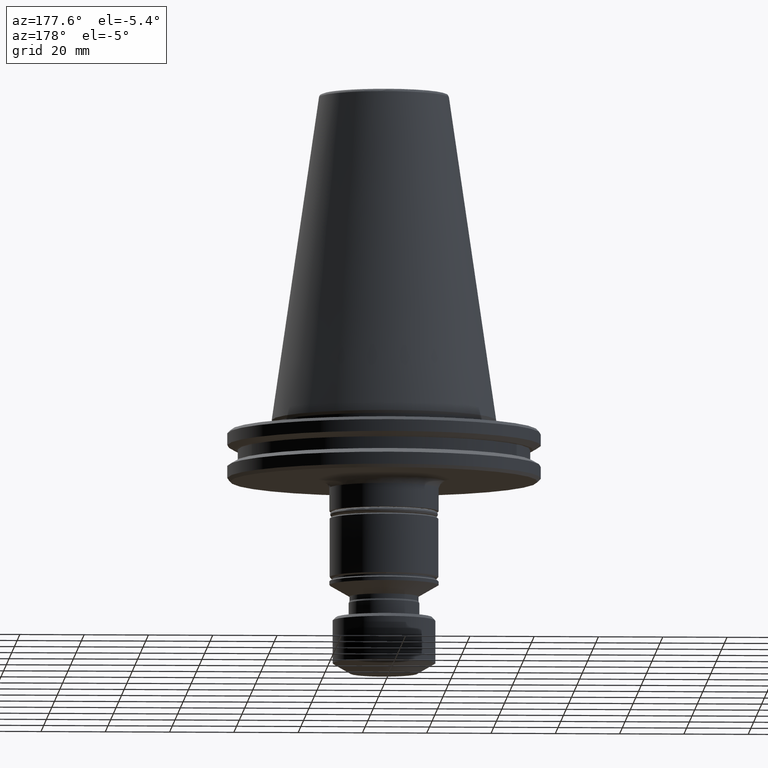
[diagram: clean part render]
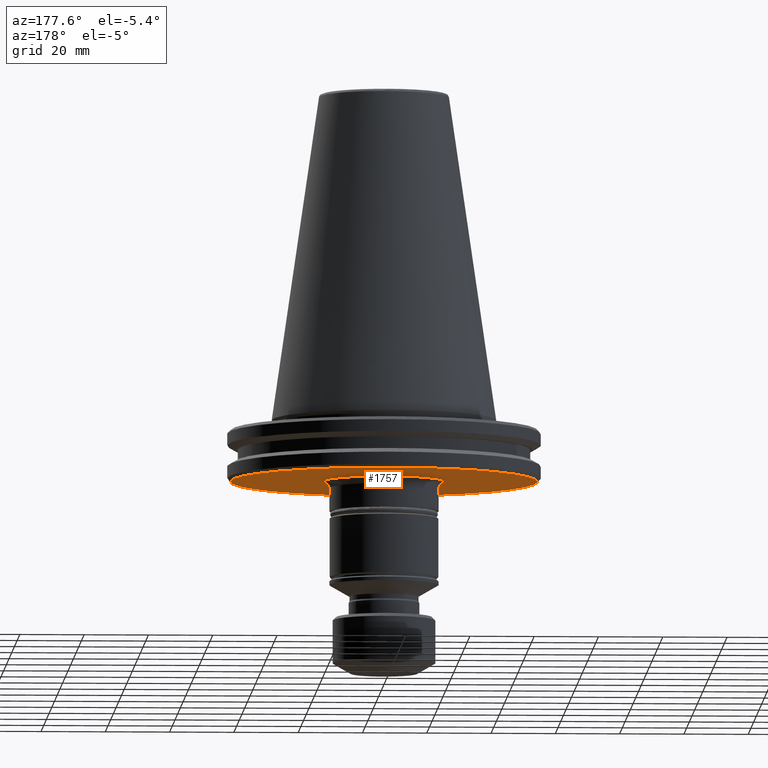
[diagram: same view with one face highlighted and labeled with its STEP entity id]
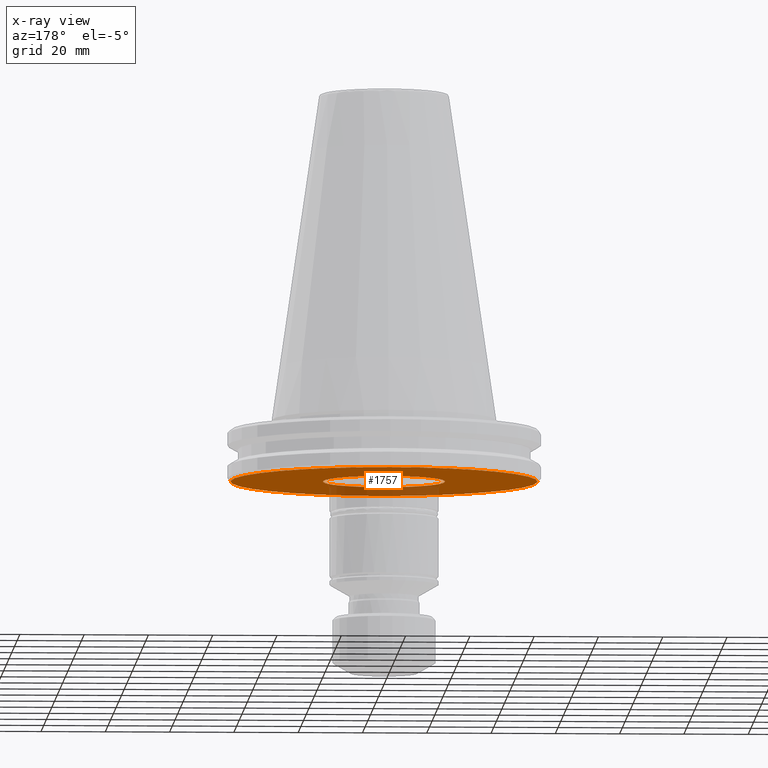
[diagram: x-ray of the same camera — body ghosted, the highlighted face saturated]
A machine part, auxiliary view. The second image highlights one B-rep face of the part: STEP entity #1757.
The next image is the same camera in x-ray: the body ghosted, the highlighted face saturated — about 17% of this face is hidden behind the body in this view.
In plain terms, the highlighted planar face has unit normal (0, 0, -1).
Its self-contained STEP definition (entity closure, byte-faithful):
#5 = EDGE_LOOP ( 'NONE', ( #982, #465 ) ) ;
#6 = CARTESIAN_POINT ( 'NONE',  ( 19.00000000000001100, 0.5809777820066233100, -19.10000000000000900 ) ) ;
#14 = CARTESIAN_POINT ( 'NONE',  ( 8.463652133828906800, -17.03213769401952100, -19.10000000000000100 ) ) ;
#22 = CARTESIAN_POINT ( 'NONE',  ( 7.590630580574469400, -17.42971649145036400, -19.10000000000000500 ) ) ;
#23 = CARTESIAN_POINT ( 'NONE',  ( 17.69422383630279700, 6.922130523949479500, -19.10000000000001200 ) ) ;
#32 = CARTESIAN_POINT ( 'NONE',  ( 6.956497537994401600, -17.68074404698216600, -19.10000000000000100 ) ) ;
#35 = CARTESIAN_POINT ( 'NONE',  ( 6.922130523950871300, -17.69422383630253400, -19.10000000000000100 ) ) ;
#38 = CARTESIAN_POINT ( 'NONE',  ( -6.490554878054840800, 17.85820765092393400, -19.10000000000000900 ) ) ;
#41 = CARTESIAN_POINT ( 'NONE',  ( 6.850365939723121600, -17.72213365351625200, -19.10000000000000500 ) ) ;
#45 = CARTESIAN_POINT ( 'NONE',  ( 6.742623436878468500, -17.76366208043419100, -19.10000000000000900 ) ) ;
#53 = CARTESIAN_POINT ( 'NONE',  ( 17.03213769402317400, 8.463652133830750700, -19.10000000000000900 ) ) ;
#54 = CARTESIAN_POINT ( 'NONE',  ( 6.490554878053026200, -17.85820765092427500, -19.10000000000001200 ) ) ;
#62 = CARTESIAN_POINT ( 'NONE',  ( 4.510639325466829800, 18.46143173788259200, -19.10000000000000100 ) ) ;
#73 = CARTESIAN_POINT ( 'NONE',  ( 7.142792904951263300, 17.60631135961862600, -19.10000000000000500 ) ) ;
#76 = CARTESIAN_POINT ( 'NONE',  ( 5.983740218317193700, -18.03788242263066300, -19.10000000000000900 ) ) ;
#82 = CARTESIAN_POINT ( 'NONE',  ( 4.959400730505682200, -18.35956648894828200, -19.10000000000000100 ) ) ;
#83 = CARTESIAN_POINT ( 'NONE',  ( 4.063035166656074900, -18.57072629934317800, -19.10000000000000900 ) ) ;
#86 = CARTESIAN_POINT ( 'NONE',  ( 3.419439422654166000, -18.68980673120064400, -19.10000000000000500 ) ) ;
#90 = CARTESIAN_POINT ( 'NONE',  ( 3.385846052829848900, -18.69591732378342300, -19.10000000000000500 ) ) ;
#98 = CARTESIAN_POINT ( 'NONE',  ( 8.025699228613046200, 17.22711661870838600, -19.10000000000000900 ) ) ;
#99 = CARTESIAN_POINT ( 'NONE',  ( 3.314366724182333400, -18.70872278897574500, -19.10000000000000900 ) ) ;
#105 = CARTESIAN_POINT ( 'NONE',  ( 3.207120345564443900, -18.72762112808801800, -19.10000000000000500 ) ) ;
#112 = CARTESIAN_POINT ( 'NONE',  ( 2.956687095929741100, -18.76954824194999100, -19.10000000000000100 ) ) ;
#115 = CARTESIAN_POINT ( 'NONE',  ( 2.455053798555118000, -18.84472642674050000, -19.10000000000000900 ) ) ;
#120 = CARTESIAN_POINT ( 'NONE',  ( 1.448720011385033600, -18.96037862458778600, -19.10000000000000500 ) ) ;
#130 = CARTESIAN_POINT ( 'NONE',  ( 0.5808901496606870800, -19.00001621405624900, -19.10000000000000500 ) ) ;
#131 = CARTESIAN_POINT ( 'NONE',  ( -1.161780299321372600, -18.99996757188751700, -19.10000000000000100 ) ) ;
#138 = CARTESIAN_POINT ( 'NONE',  ( -2.314919086400696500, -18.89423488548291600, -19.10000000000000900 ) ) ;
#144 = CARTESIAN_POINT ( 'NONE',  ( -3.492997336750440300, -18.67619472224091500, -19.10000000000000500 ) ) ;
#156 = CARTESIAN_POINT ( 'NONE',  ( -3.533024647273774300, -18.66866848758581600, -19.10000000000000900 ) ) ;
#163 = CARTESIAN_POINT ( 'NONE',  ( -3.608653701709434400, -18.65419924540756500, -19.09999999999999800 ) ) ;
#165 = CARTESIAN_POINT ( 'NONE',  ( -3.721999686355568700, -18.63215965229107200, -19.10000000000000900 ) ) ;
#167 = CARTESIAN_POINT ( 'NONE',  ( -3.985790471478344500, -18.57838382607525000, -19.10000000000000500 ) ) ;
#169 = CARTESIAN_POINT ( 'NONE',  ( -4.510639325517779200, -18.46143173786774800, -19.10000000000000500 ) ) ;
#170 = CARTESIAN_POINT ( 'NONE',  ( -5.549406168772169900, -18.18992581834922000, -19.10000000000000500 ) ) ;
#175 = CARTESIAN_POINT ( 'NONE',  ( 5.549406168704234900, 18.18992581836901200, -19.10000000000000500 ) ) ;
#176 = CARTESIAN_POINT ( 'NONE',  ( -6.421039123291122600, -17.89274632772729800, -19.10000000000000500 ) ) ;
#179 = CARTESIAN_POINT ( 'NONE',  ( -7.029597004074615200, -17.65180468221486300, -19.10000000000000100 ) ) ;
#180 = CARTESIAN_POINT ( 'NONE',  ( -2.455053798555202300, 18.84472642674050000, -19.10000000000000500 ) ) ;
#181 = CARTESIAN_POINT ( 'NONE',  ( -7.068383925188891600, -17.63631276670648200, -19.10000000000000100 ) ) ;
#189 = CARTESIAN_POINT ( 'NONE',  ( -7.142792904956171400, -17.60631135961566000, -19.10000000000000100 ) ) ;
#195 = CARTESIAN_POINT ( 'NONE',  ( 18.57838382608238700, -3.985790471456483400, -19.10000000000000500 ) ) ;
#201 = CARTESIAN_POINT ( 'NONE',  ( -7.254230910861063600, -17.56097279536832900, -19.10000000000000900 ) ) ;
#202 = CARTESIAN_POINT ( 'NONE',  ( -7.513024678416936600, -17.45282763684671300, -19.10000000000000100 ) ) ;
#206 = CARTESIAN_POINT ( 'NONE',  ( -8.025699228639895800, -17.22711661869220000, -19.10000000000000500 ) ) ;
#212 = CARTESIAN_POINT ( 'NONE',  ( 15.18537884479581700, 11.49457370129381000, -19.10000000000000900 ) ) ;
#213 = CARTESIAN_POINT ( 'NONE',  ( -9.031396389530639700, -16.73801177793802000, -19.10000000000000500 ) ) ;
#217 = CARTESIAN_POINT ( 'NONE',  ( -9.859733488199536200, -16.25417996395704600, -19.10000000000000100 ) ) ;
#220 = CARTESIAN_POINT ( 'NONE',  ( -10.46414179258248500, -15.85900655680404900, -19.10000000000000500 ) ) ;
#237 = FACE_BOUND ( 'NONE', #1543, .T. ) ;
#239 = CARTESIAN_POINT ( 'NONE',  ( 15.85900655680319300, -10.46414179258399100, -19.10000000000000500 ) ) ;
#244 = CARTESIAN_POINT ( 'NONE',  ( -10.53391970750573800, -15.81275742974422400, -19.10000000000000500 ) ) ;
#245 = CARTESIAN_POINT ( 'NONE',  ( -4.959400730509826400, 18.35956648894749000, -19.10000000000000500 ) ) ;
#252 = CARTESIAN_POINT ( 'NONE',  ( -10.66985256074098700, -15.72137389202451600, -19.10000000000000100 ) ) ;
#254 = CARTESIAN_POINT ( 'NONE',  ( -10.87275030064111000, -15.58307233113541900, -19.10000000000000500 ) ) ;
#262 = CARTESIAN_POINT ( 'NONE',  ( -11.33916758073869800, -15.25178490889409000, -19.10000000000000500 ) ) ;
#267 = CARTESIAN_POINT ( 'NONE',  ( 18.35956648895193100, 4.959400730485834100, -19.10000000000000500 ) ) ;
#269 = CARTESIAN_POINT ( 'NONE',  ( -12.24395902225644200, -14.55487494374427000, -19.10000000000000900 ) ) ;
#272 = CARTESIAN_POINT ( 'NONE',  ( -12.97142062582461200, -13.89866333818647300, -19.10000000000000100 ) ) ;
#284 = CARTESIAN_POINT ( 'NONE',  ( -14.36224527598398200, -12.50775985126027500, -19.10000000000000900 ) ) ;
#288 = CARTESIAN_POINT ( 'NONE',  ( 16.25417996396392400, -9.859733488187417900, -19.10000000000000900 ) ) ;
#293 = CARTESIAN_POINT ( 'NONE',  ( -15.18537884483006600, -11.49457370125323800, -19.10000000000000900 ) ) ;
#298 = CARTESIAN_POINT ( 'NONE',  ( 7.029597004077050600, 17.65180468221414500, -19.10000000000000500 ) ) ;
#301 = CARTESIAN_POINT ( 'NONE',  ( -15.94776070492465400, -10.32838604013423700, -19.10000000000000900 ) ) ;
#304 = CARTESIAN_POINT ( 'NONE',  ( -15.99032145911561100, -10.26236275824782300, -19.10000000000000900 ) ) ;
#312 = CARTESIAN_POINT ( 'NONE',  ( 47.75000000000067500, 0.0000000000000000000, -19.10000000000000500 ) ) ;
#319 = CARTESIAN_POINT ( 'NONE',  ( -16.07637861275411600, -10.12704566795630100, -19.10000000000000900 ) ) ;
#325 = CARTESIAN_POINT ( 'NONE',  ( -16.20411475088911900, -9.923375498297385600, -19.10000000000000500 ) ) ;
#327 = CARTESIAN_POINT ( 'NONE',  ( -16.49271859361169800, -9.443283362875165600, -19.10000000000000500 ) ) ;
#329 = CARTESIAN_POINT ( 'NONE',  ( -3.314366724182350700, 18.70872278897574500, -19.10000000000000900 ) ) ;
#337 = CARTESIAN_POINT ( 'NONE',  ( -17.03213769402032100, -8.463652133825013000, -19.10000000000000500 ) ) ;
#350 = CARTESIAN_POINT ( 'NONE',  ( -17.42971649145082200, -7.590630580572248900, -19.10000000000000500 ) ) ;
#358 = CARTESIAN_POINT ( 'NONE',  ( -17.68074404698214500, -6.956497537994543700, -19.10000000000000900 ) ) ;
#360 = CARTESIAN_POINT ( 'NONE',  ( -17.69422383630182300, -6.922130523952807500, -19.10000000000000500 ) ) ;
#362 = CARTESIAN_POINT ( 'NONE',  ( -19.00000000000000400, 0.0000000000000000000, -19.10000000000000500 ) ) ;
#366 = CARTESIAN_POINT ( 'NONE',  ( -17.72213365351484900, -6.850365939726901700, -19.10000000000000100 ) ) ;
#379 = CARTESIAN_POINT ( 'NONE',  ( -17.76366208043180400, -6.742623436884918500, -19.10000000000000500 ) ) ;
#382 = CARTESIAN_POINT ( 'NONE',  ( -17.85820765091982000, -6.490554878065080600, -19.10000000000000900 ) ) ;
#384 = CARTESIAN_POINT ( 'NONE',  ( 16.20411475089037300, 9.923375498299888500, -19.09999999999999800 ) ) ;
#387 = CARTESIAN_POINT ( 'NONE',  ( -18.03788242262301700, -5.983740218337853600, -19.10000000000000900 ) ) ;
#391 = CARTESIAN_POINT ( 'NONE',  ( -18.35956648893810700, -4.959400730533222800, -19.10000000000000900 ) ) ;
#396 = CARTESIAN_POINT ( 'NONE',  ( -18.57072629933735200, -4.063035166671817000, -19.10000000000000100 ) ) ;
#398 = CARTESIAN_POINT ( 'NONE',  ( -18.68980673120101000, -3.419439422653182800, -19.10000000000000100 ) ) ;
#401 = CARTESIAN_POINT ( 'NONE',  ( -18.69591532869446800, -3.385856835717981900, -19.10000000000000500 ) ) ;
#408 = CARTESIAN_POINT ( 'NONE',  ( -18.70871889380206800, -3.314387776487736700, -19.10000000000000100 ) ) ;
#410 = CARTESIAN_POINT ( 'NONE',  ( -18.72761447779151900, -3.207156288524889200, -19.10000000000000900 ) ) ;
#420 = CARTESIAN_POINT ( 'NONE',  ( -18.76953582806319400, -2.956754189455899500, -19.10000000000000500 ) ) ;
#421 = CARTESIAN_POINT ( 'NONE',  ( -18.84470514579167100, -2.455168816028534500, -19.10000000000000500 ) ) ;
#426 = CARTESIAN_POINT ( 'NONE',  ( -19.00000000000000400, 0.0000000000000000000, -19.10000000000000500 ) ) ;
#429 = CARTESIAN_POINT ( 'NONE',  ( -18.96035024998936800, -1.448873368016260900, -19.10000000000000500 ) ) ;
#431 = CARTESIAN_POINT ( 'NONE',  ( 10.46414179258503700, 15.85900655680250500, -19.10000000000000500 ) ) ;
#435 = AXIS2_PLACEMENT_3D ( 'NONE', #1684, #1544, #1533 ) ;
#465 = ORIENTED_EDGE ( 'NONE', *, *, #2356, .T. ) ;
#469 = CARTESIAN_POINT ( 'NONE',  ( -19.00000000000000000, -0.5809777820213816200, -19.10000000000000100 ) ) ;
#486 = CARTESIAN_POINT ( 'NONE',  ( 3.533024647269003000, 18.66866848758720100, -19.09999999999999800 ) ) ;
#538 = CARTESIAN_POINT ( 'NONE',  ( 18.67619370824647600, -3.493002815397388400, -19.10000000000000900 ) ) ;
#571 = CARTESIAN_POINT ( 'NONE',  ( -3.207120345564471500, 18.72762112808802100, -19.10000000000000500 ) ) ;
#604 = CARTESIAN_POINT ( 'NONE',  ( 15.94776070492679300, 10.32838604013169500, -19.10000000000000100 ) ) ;
#607 = CARTESIAN_POINT ( 'NONE',  ( 15.72137389202870100, -10.66985256073534500, -19.10000000000000500 ) ) ;
#623 = CARTESIAN_POINT ( 'NONE',  ( 6.421039123252303900, 17.89274632773859300, -19.09999999999999800 ) ) ;
#639 = CARTESIAN_POINT ( 'NONE',  ( -4.063035166658449900, 18.57072629934273100, -19.10000000000000900 ) ) ;
#659 = CARTESIAN_POINT ( 'NONE',  ( 17.85820765092586600, 6.490554878044346900, -19.10000000000000500 ) ) ;
#669 = CARTESIAN_POINT ( 'NONE',  ( 18.68980673120052000, 3.419439422654882300, -19.10000000000000900 ) ) ;
#677 = CARTESIAN_POINT ( 'NONE',  ( 11.49457370127746700, -15.18537884481217000, -19.10000000000001600 ) ) ;
#682 = ORIENTED_EDGE ( 'NONE', *, *, #1653, .T. ) ;
#703 = EDGE_CURVE ( 'NONE', #2045, #1659, #2172, .T. ) ;
#724 = CARTESIAN_POINT ( 'NONE',  ( 16.73801177795005300, -9.031396389509442500, -19.10000000000000500 ) ) ;
#733 = CARTESIAN_POINT ( 'NONE',  ( 17.56097279537114600, -7.254230910856091600, -19.10000000000000500 ) ) ;
#734 = B_SPLINE_CURVE_WITH_KNOTS ( 'NONE', 3,
 ( #2011, #6, #2041, #2306, #1428, #2258, #2227, #1507, #669, #1030, #267, #1266, #659, #2153, #739, #23, #811, #1974, #53, #846, #384, #2477, #1436, #604, #212, #2252, #1287, #1280, #878, #1698, #1741, #1667, #431, #2163, #1773, #98, #1297, #1851, #73, #1204, #298, #623, #175, #62, #2348, #1719, #1420, #486, #1642, #1713, #1001, #2305, #2355, #180, #1396, #571, #329, #2162, #2442, #639, #245, #754, #38, #1843, #2129, #2007, #1273, #1272, #2501, #1368, #1616, #1655, #1645, #1269, #1672, #1402, #1381, #1393, #1488, #1681, #1706, #1238, #1461, #1598, #1230, #1580, #1224, #1584, #1559, #1259, #1276, #1113, #1108, #1187, #1207, #1158, #1661, #1677, #1704, #1818, #1824, #1981 ),
 .UNSPECIFIED., .F., .F.,
 ( 4, 1, 1, 1, 1, 2, 2, 1, 1, 1, 1, 2, 2, 1, 1, 1, 2, 2, 2, 1, 1, 1, 2, 2, 1, 1, 1, 1, 2, 2, 1, 1, 1, 1, 2, 2, 2, 1, 1, 1, 1, 2, 2, 1, 1, 1, 1, 2, 2, 1, 1, 1, 2, 2, 2, 1, 1, 1, 2, 2, 1, 1, 1, 1, 2, 2, 1, 1, 1, 1, 2, 2, 4 ),
 ( 0.0000000000000000000, 0.03125000000000040900, 0.04687500000000062500, 0.05468750000000073600, 0.05859375000000077000, 0.06054687500000079800, 0.06250000000000083300, 0.09375000000000147100, 0.1093750000000017500, 0.1171875000000018900, 0.1210937500000019400, 0.1230468750000019600, 0.1250000000000019700, 0.1562500000000021900, 0.1718750000000023300, 0.1796875000000024100, 0.1835937500000024100, 0.1875000000000023900, 0.2500000000000018900, 0.2812500000000016100, 0.2968750000000015000, 0.3046875000000014400, 0.3085937500000015000, 0.3125000000000015500, 0.3437500000000018300, 0.3593750000000020000, 0.3671875000000020500, 0.3710937500000020500, 0.3730468750000020000, 0.3750000000000019400, 0.4062500000000015500, 0.4218750000000013900, 0.4296875000000012800, 0.4335937500000012800, 0.4355468750000012800, 0.4375000000000012200, 0.5000000000000002200, 0.5312499999999997800, 0.5468749999999995600, 0.5546874999999993300, 0.5585937499999993300, 0.5605468749999992200, 0.5624999999999991100, 0.5937499999999980000, 0.6093749999999975600, 0.6171874999999973400, 0.6210937499999971100, 0.6230468749999971100, 0.6249999999999970000, 0.6562499999999965600, 0.6718749999999964500, 0.6796874999999963400, 0.6835937499999963400, 0.6874999999999962300, 0.7499999999999967800, 0.7812499999999971100, 0.7968749999999972200, 0.8046874999999973400, 0.8085937499999974500, 0.8124999999999976700, 0.8437499999999985600, 0.8593749999999988900, 0.8671874999999991100, 0.8710937499999992200, 0.8730468749999992200, 0.8749999999999992200, 0.9062499999999994400, 0.9218749999999995600, 0.9296874999999996700, 0.9335937499999996700, 0.9355468749999996700, 0.9374999999999997800, 1.000000000000000000 ),
 .UNSPECIFIED. ) ;
#739 = CARTESIAN_POINT ( 'NONE',  ( 17.72213365351676000, 6.850365939720400200, -19.10000000000000100 ) ) ;
#754 = CARTESIAN_POINT ( 'NONE',  ( -5.983740218320297000, 18.03788242263005900, -19.10000000000000100 ) ) ;
#775 = CARTESIAN_POINT ( 'NONE',  ( 19.00000000000000400, 2.326828918379971400E-015, -19.10000000000000500 ) ) ;
#784 = VERTEX_POINT ( 'NONE', #312 ) ;
#811 = CARTESIAN_POINT ( 'NONE',  ( 17.68074404698204200, 6.956497537994340300, -19.10000000000000500 ) ) ;
#835 = CARTESIAN_POINT ( 'NONE',  ( 10.26236275824836100, -15.99032145911550500, -19.10000000000000500 ) ) ;
#846 = CARTESIAN_POINT ( 'NONE',  ( 16.49271859361383700, 9.443283362879467900, -19.10000000000000500 ) ) ;
#878 = CARTESIAN_POINT ( 'NONE',  ( 11.33916758072264100, 15.25178490890598800, -19.10000000000000500 ) ) ;
#883 = CARTESIAN_POINT ( 'NONE',  ( 9.443283362878087700, -16.49271859361109400, -19.10000000000000900 ) ) ;
#912 = CARTESIAN_POINT ( 'NONE',  ( 0.0000000000000000000, 0.0000000000000000000, -19.10000000000000500 ) ) ;
#982 = ORIENTED_EDGE ( 'NONE', *, *, #1376, .T. ) ;
#1001 = CARTESIAN_POINT ( 'NONE',  ( 1.161780299321495200, 18.99996757188752000, -19.10000000000000500 ) ) ;
#1022 = CARTESIAN_POINT ( 'NONE',  ( 12.50775985124212900, -14.36224527600845300, -19.10000000000000500 ) ) ;
#1030 = CARTESIAN_POINT ( 'NONE',  ( 18.57072629934527100, 4.063035166644740800, -19.10000000000000900 ) ) ;
#1031 = CARTESIAN_POINT ( 'NONE',  ( 17.65180468221427600, -7.029597004076397800, -19.10000000000000500 ) ) ;
#1090 = CIRCLE ( 'NONE', #1703, 47.75000000000067500 ) ;
#1096 = CARTESIAN_POINT ( 'NONE',  ( 19.00000000000000700, -1.162311104421510200, -19.10000000000000500 ) ) ;
#1108 = CARTESIAN_POINT ( 'NONE',  ( -18.18992581836568300, 5.549406168721810100, -19.10000000000000900 ) ) ;
#1112 = DIRECTION ( 'NONE',  ( -0.0000000000000000000, -0.0000000000000000000, -1.000000000000000000 ) ) ;
#1113 = CARTESIAN_POINT ( 'NONE',  ( -17.89274632773669200, 6.421039123262350900, -19.10000000000000900 ) ) ;
#1131 = CARTESIAN_POINT ( 'NONE',  ( 18.46143173787999100, -4.510639325480298100, -19.10000000000000500 ) ) ;
#1138 = CARTESIAN_POINT ( 'NONE',  ( 17.60631135961731500, -7.142792904953260800, -19.10000000000000500 ) ) ;
#1158 = CARTESIAN_POINT ( 'NONE',  ( -18.63215965229492700, 3.721999686343763000, -19.10000000000000900 ) ) ;
#1187 = CARTESIAN_POINT ( 'NONE',  ( -18.46143173788010500, 4.510639325479994400, -19.10000000000000900 ) ) ;
#1204 = CARTESIAN_POINT ( 'NONE',  ( 7.068383925186383400, 17.63631276670799200, -19.10000000000000100 ) ) ;
#1207 = CARTESIAN_POINT ( 'NONE',  ( -18.57838382608245800, 3.985790471456309300, -19.10000000000000500 ) ) ;
#1224 = CARTESIAN_POINT ( 'NONE',  ( -17.45282763685362000, 7.513024678403500200, -19.10000000000000500 ) ) ;
#1230 = CARTESIAN_POINT ( 'NONE',  ( -16.73801177795381200, 9.031396389499914100, -19.10000000000000500 ) ) ;
#1232 = CARTESIAN_POINT ( 'NONE',  ( 18.63215965229488400, -3.721999686343856700, -19.10000000000000500 ) ) ;
#1238 = CARTESIAN_POINT ( 'NONE',  ( -15.81275742974693300, 10.53391970750250200, -19.10000000000000500 ) ) ;
#1259 = CARTESIAN_POINT ( 'NONE',  ( -17.63631276670758300, 7.068383925186740400, -19.10000000000000500 ) ) ;
#1266 = CARTESIAN_POINT ( 'NONE',  ( 18.03788242263338400, 5.983740218302310500, -19.10000000000000500 ) ) ;
#1269 = CARTESIAN_POINT ( 'NONE',  ( -10.32838604013156000, 15.94776070492706000, -19.10000000000000500 ) ) ;
#1272 = CARTESIAN_POINT ( 'NONE',  ( -7.590630580592660200, 17.42971649144265800, -19.10000000000000900 ) ) ;
#1273 = CARTESIAN_POINT ( 'NONE',  ( -6.956497537993271000, 17.68074404698265300, -19.10000000000000900 ) ) ;
#1276 = CARTESIAN_POINT ( 'NONE',  ( -17.65180468221426900, 7.029597004076421700, -19.10000000000000500 ) ) ;
#1280 = CARTESIAN_POINT ( 'NONE',  ( 12.24395902223502800, 14.55487494376014200, -19.10000000000000500 ) ) ;
#1287 = CARTESIAN_POINT ( 'NONE',  ( 12.97142062581238700, 13.89866333819553600, -19.10000000000000100 ) ) ;
#1297 = CARTESIAN_POINT ( 'NONE',  ( 7.513024678401278000, 17.45282763685615300, -19.10000000000000500 ) ) ;
#1353 = CARTESIAN_POINT ( 'NONE',  ( -47.75000000000067500, 5.908920805886092400E-015, -19.10000000000000500 ) ) ;
#1356 = CARTESIAN_POINT ( 'NONE',  ( 15.58307233114236100, -10.87275030063173600, -19.10000000000000100 ) ) ;
#1368 = CARTESIAN_POINT ( 'NONE',  ( -9.443283362901944100, 16.49271859360097600, -19.10000000000000100 ) ) ;
#1376 = EDGE_CURVE ( 'NONE', #784, #1697, #1472, .T. ) ;
#1379 = CARTESIAN_POINT ( 'NONE',  ( 14.55487494376014000, -12.24395902223502700, -19.10000000000000500 ) ) ;
#1381 = CARTESIAN_POINT ( 'NONE',  ( -13.89866333819769500, 12.97142062581128900, -19.10000000000000900 ) ) ;
#1393 = CARTESIAN_POINT ( 'NONE',  ( -14.55487494376391100, 12.24395902223311700, -19.10000000000000900 ) ) ;
#1396 = CARTESIAN_POINT ( 'NONE',  ( -2.956687095929790000, 18.76954824194998700, -19.10000000000000100 ) ) ;
#1402 = CARTESIAN_POINT ( 'NONE',  ( -12.50775985123781500, 14.36224527601065200, -19.10000000000000100 ) ) ;
#1420 = CARTESIAN_POINT ( 'NONE',  ( 3.608653701700115700, 18.65419924541029300, -19.10000000000000500 ) ) ;
#1428 = CARTESIAN_POINT ( 'NONE',  ( 18.76953582806319100, 2.956754189444601900, -19.09999999999999800 ) ) ;
#1431 = CARTESIAN_POINT ( 'NONE',  ( 9.923375498299089200, -16.20411475088877400, -19.10000000000000500 ) ) ;
#1436 = CARTESIAN_POINT ( 'NONE',  ( 15.99032145911601400, 10.26236275824860800, -19.09999999999999800 ) ) ;
#1461 = CARTESIAN_POINT ( 'NONE',  ( -15.85900655680291000, 10.46414179258467100, -19.10000000000000100 ) ) ;
#1472 = CIRCLE ( 'NONE', #1604, 47.75000000000067500 ) ;
#1488 = CARTESIAN_POINT ( 'NONE',  ( -15.25178490890881000, 11.33916758072119900, -19.10000000000000100 ) ) ;
#1507 = CARTESIAN_POINT ( 'NONE',  ( 18.69591532869447900, 3.385856835716170900, -19.10000000000000500 ) ) ;
#1520 = CARTESIAN_POINT ( 'NONE',  ( 10.32838604013272400, -15.94776070492577200, -19.10000000000000500 ) ) ;
#1533 = DIRECTION ( 'NONE',  ( -1.000000000000000000, 0.0000000000000000000, -0.0000000000000000000 ) ) ;
#1543 = EDGE_LOOP ( 'NONE', ( #2427, #682 ) ) ;
#1544 = DIRECTION ( 'NONE',  ( 0.0000000000000000000, 0.0000000000000000000, -1.000000000000000000 ) ) ;
#1559 = CARTESIAN_POINT ( 'NONE',  ( -17.60631135961782300, 7.142792904951961400, -19.10000000000000500 ) ) ;
#1580 = CARTESIAN_POINT ( 'NONE',  ( -17.22711661870404100, 8.025699228616858200, -19.10000000000000500 ) ) ;
#1584 = CARTESIAN_POINT ( 'NONE',  ( -17.56097279537202400, 7.254230910853866700, -19.10000000000000100 ) ) ;
#1598 = CARTESIAN_POINT ( 'NONE',  ( -16.25417996396607000, 9.859733488181975100, -19.10000000000001200 ) ) ;
#1604 = AXIS2_PLACEMENT_3D ( 'NONE', #2060, #2034, #2028 ) ;
#1607 = CARTESIAN_POINT ( 'NONE',  ( 17.22711661870122800, -8.025699228624001000, -19.10000000000000100 ) ) ;
#1616 = CARTESIAN_POINT ( 'NONE',  ( -9.923375498313006900, 16.20411475088286900, -19.10000000000000500 ) ) ;
#1627 = CARTESIAN_POINT ( 'NONE',  ( 10.12704566795732200, -16.07637861275390600, -19.10000000000000500 ) ) ;
#1633 = PLANE ( 'NONE',  #435 ) ;
#1634 = CARTESIAN_POINT ( 'NONE',  ( 13.89866333819554700, -12.97142062581238000, -19.10000000000000900 ) ) ;
#1642 = CARTESIAN_POINT ( 'NONE',  ( 3.492997336751757500, 18.67619472224091500, -19.10000000000000500 ) ) ;
#1645 = CARTESIAN_POINT ( 'NONE',  ( -10.26236275825275300, 15.99032145911363400, -19.10000000000000500 ) ) ;
#1653 = EDGE_CURVE ( 'NONE', #1659, #2045, #734, .T. ) ;
#1655 = CARTESIAN_POINT ( 'NONE',  ( -10.12704566796570100, 16.07637861275035400, -19.10000000000000500 ) ) ;
#1657 = FACE_OUTER_BOUND ( 'NONE', #5, .T. ) ;
#1659 = VERTEX_POINT ( 'NONE', #2121 ) ;
#1661 = CARTESIAN_POINT ( 'NONE',  ( -18.65419924540982800, 3.608653701702524000, -19.10000000000000500 ) ) ;
#1667 = CARTESIAN_POINT ( 'NONE',  ( 10.53391970750276800, 15.81275742974641600, -19.10000000000000500 ) ) ;
#1669 = DIRECTION ( 'NONE',  ( -1.000000000000000000, 0.0000000000000000000, 0.0000000000000000000 ) ) ;
#1672 = CARTESIAN_POINT ( 'NONE',  ( -11.49457370129602300, 15.18537884479149500, -19.10000000000000500 ) ) ;
#1677 = CARTESIAN_POINT ( 'NONE',  ( -18.66866848758696000, 3.533024647270234900, -19.10000000000000100 ) ) ;
#1681 = CARTESIAN_POINT ( 'NONE',  ( -15.58307233114401500, 10.87275030063090100, -19.10000000000000500 ) ) ;
#1684 = CARTESIAN_POINT ( 'NONE',  ( 0.0000000000000000000, 1.392610934382537900E-015, -19.10000000000000500 ) ) ;
#1697 = VERTEX_POINT ( 'NONE', #1353 ) ;
#1698 = CARTESIAN_POINT ( 'NONE',  ( 10.87275030063173600, 15.58307233114235800, -19.10000000000000500 ) ) ;
#1703 = AXIS2_PLACEMENT_3D ( 'NONE', #912, #1112, #1669 ) ;
#1704 = CARTESIAN_POINT ( 'NONE',  ( -18.67619370824646900, 3.493002815397405800, -19.10000000000000100 ) ) ;
#1706 = CARTESIAN_POINT ( 'NONE',  ( -15.72137389202969100, 10.66985256073484600, -19.10000000000000500 ) ) ;
#1708 = CARTESIAN_POINT ( 'NONE',  ( 17.45282763685197100, -7.513024678407670200, -19.10000000000000900 ) ) ;
#1713 = CARTESIAN_POINT ( 'NONE',  ( 2.314919086358740800, 18.89423488548291300, -19.10000000000000500 ) ) ;
#1719 = CARTESIAN_POINT ( 'NONE',  ( 3.721999686339648500, 18.63215965229570200, -19.10000000000000500 ) ) ;
#1741 = CARTESIAN_POINT ( 'NONE',  ( 10.66985256073534800, 15.72137389202869800, -19.10000000000000100 ) ) ;
#1757 = ADVANCED_FACE ( 'NONE', ( #237, #1657 ), #1633, .T. ) ;
#1773 = CARTESIAN_POINT ( 'NONE',  ( 9.031396389494826600, 16.73801177795960300, -19.10000000000000500 ) ) ;
#1812 = CARTESIAN_POINT ( 'NONE',  ( 18.89426733330497400, -2.314743769698413900, -19.10000000000000100 ) ) ;
#1818 = CARTESIAN_POINT ( 'NONE',  ( -18.89426733330497400, 2.314743769697957400, -19.10000000000000100 ) ) ;
#1824 = CARTESIAN_POINT ( 'NONE',  ( -19.00000000000000700, 1.162311104421004800, -19.09999999999999800 ) ) ;
#1843 = CARTESIAN_POINT ( 'NONE',  ( -6.742623436879444700, 17.76366208043400600, -19.10000000000000100 ) ) ;
#1851 = CARTESIAN_POINT ( 'NONE',  ( 7.254230910852679200, 17.56097279537338100, -19.10000000000000500 ) ) ;
#1881 = CARTESIAN_POINT ( 'NONE',  ( 18.65419924540980600, -3.608653701702577700, -19.10000000000000100 ) ) ;
#1974 = CARTESIAN_POINT ( 'NONE',  ( 17.42971649145244900, 7.590630580575531600, -19.10000000000000500 ) ) ;
#1981 = CARTESIAN_POINT ( 'NONE',  ( -19.00000000000000400, 0.0000000000000000000, -19.10000000000000500 ) ) ;
#1995 = CARTESIAN_POINT ( 'NONE',  ( 17.89274632773661000, -6.421039123262570300, -19.10000000000000500 ) ) ;
#2007 = CARTESIAN_POINT ( 'NONE',  ( -6.922130523951167000, 17.69422383630247700, -19.10000000000000500 ) ) ;
#2011 = CARTESIAN_POINT ( 'NONE',  ( 19.00000000000000400, 2.326828918379971400E-015, -19.10000000000000500 ) ) ;
#2028 = DIRECTION ( 'NONE',  ( -1.000000000000000000, 0.0000000000000000000, 0.0000000000000000000 ) ) ;
#2034 = DIRECTION ( 'NONE',  ( -0.0000000000000000000, -0.0000000000000000000, -1.000000000000000000 ) ) ;
#2041 = CARTESIAN_POINT ( 'NONE',  ( 18.96035024998937100, 1.448873367990433300, -19.10000000000000500 ) ) ;
#2045 = VERTEX_POINT ( 'NONE', #362 ) ;
#2060 = CARTESIAN_POINT ( 'NONE',  ( 0.0000000000000000000, 0.0000000000000000000, -19.10000000000000500 ) ) ;
#2121 = CARTESIAN_POINT ( 'NONE',  ( 19.00000000000000400, 2.326828918379971400E-015, -19.10000000000000500 ) ) ;
#2129 = CARTESIAN_POINT ( 'NONE',  ( -6.850365939723696200, 17.72213365351613800, -19.10000000000000100 ) ) ;
#2147 = CARTESIAN_POINT ( 'NONE',  ( 15.25178490890598600, -11.33916758072264500, -19.10000000000000900 ) ) ;
#2153 = CARTESIAN_POINT ( 'NONE',  ( 17.76366208043504400, 6.742623436873818000, -19.10000000000000100 ) ) ;
#2162 = CARTESIAN_POINT ( 'NONE',  ( -3.385846052829858200, 18.69591732378343000, -19.10000000000000500 ) ) ;
#2163 = CARTESIAN_POINT ( 'NONE',  ( 9.859733488179069000, 16.25417996396938500, -19.10000000000000900 ) ) ;
#2172 = B_SPLINE_CURVE_WITH_KNOTS ( 'NONE', 3,
 ( #426, #469, #429, #421, #420, #410, #408, #401, #398, #396, #391, #387, #382, #379, #366, #360, #358, #350, #337, #327, #325, #319, #304, #301, #293, #284, #272, #269, #262, #254, #252, #244, #220, #217, #213, #206, #202, #201, #189, #181, #179, #176, #170, #169, #167, #165, #163, #156, #144, #138, #131, #130, #120, #115, #112, #105, #99, #90, #86, #83, #82, #76, #54, #45, #41, #35, #32, #22, #14, #883, #1431, #1627, #835, #1520, #677, #1022, #1634, #1379, #2147, #1356, #607, #2430, #239, #288, #724, #1607, #1708, #733, #1138, #2277, #1031, #1995, #2330, #1131, #195, #1232, #1881, #2288, #538, #1812, #1096, #775 ),
 .UNSPECIFIED., .F., .F.,
 ( 4, 1, 1, 1, 1, 2, 2, 1, 1, 1, 1, 2, 2, 1, 1, 1, 2, 2, 2, 1, 1, 1, 2, 2, 1, 1, 1, 1, 2, 2, 1, 1, 1, 1, 2, 2, 2, 1, 1, 1, 1, 2, 2, 1, 1, 1, 1, 2, 2, 1, 1, 1, 2, 2, 2, 1, 1, 1, 2, 2, 1, 1, 1, 1, 2, 2, 1, 1, 1, 1, 2, 2, 4 ),
 ( 0.0000000000000000000, 0.03124999999999975000, 0.04687499999999961800, 0.05468749999999956300, 0.05859374999999952100, 0.06054687499999952100, 0.06249999999999952800, 0.09374999999999947300, 0.1093749999999994400, 0.1171874999999994300, 0.1210937499999994300, 0.1230468749999994300, 0.1249999999999994400, 0.1562499999999993600, 0.1718749999999993100, 0.1796874999999993100, 0.1835937499999993300, 0.1874999999999993600, 0.2499999999999982200, 0.2812499999999976700, 0.2968749999999973400, 0.3046874999999971700, 0.3085937499999971700, 0.3124999999999971100, 0.3437499999999968400, 0.3593749999999966100, 0.3671874999999965000, 0.3710937499999965000, 0.3730468749999964500, 0.3749999999999964500, 0.4062499999999966100, 0.4218749999999966700, 0.4296874999999967200, 0.4335937499999967200, 0.4355468749999966700, 0.4374999999999966700, 0.4999999999999963400, 0.5312499999999962300, 0.5468749999999961100, 0.5546874999999960000, 0.5585937499999960000, 0.5605468749999960000, 0.5624999999999958900, 0.5937499999999960000, 0.6093749999999961100, 0.6171874999999962300, 0.6210937499999961100, 0.6230468749999961100, 0.6249999999999961100, 0.6562499999999962300, 0.6718749999999962300, 0.6796874999999962300, 0.6835937499999963400, 0.6874999999999963400, 0.7499999999999967800, 0.7812499999999970000, 0.7968749999999971100, 0.8046874999999971100, 0.8085937499999972200, 0.8124999999999972200, 0.8437499999999981100, 0.8593749999999985600, 0.8671874999999988900, 0.8710937499999988900, 0.8730468749999988900, 0.8749999999999988900, 0.9062499999999991100, 0.9218749999999992200, 0.9296874999999992200, 0.9335937499999992200, 0.9355468749999992200, 0.9374999999999991100, 1.000000000000000000 ),
 .UNSPECIFIED. ) ;
#2227 = CARTESIAN_POINT ( 'NONE',  ( 18.70871889380207200, 3.314387776484196900, -19.10000000000000900 ) ) ;
#2252 = CARTESIAN_POINT ( 'NONE',  ( 14.36224527600845100, 12.50775985124214200, -19.10000000000000100 ) ) ;
#2258 = CARTESIAN_POINT ( 'NONE',  ( 18.72761447779152300, 3.207156288518839800, -19.10000000000000900 ) ) ;
#2277 = CARTESIAN_POINT ( 'NONE',  ( 17.63631276670733100, -7.068383925187401200, -19.10000000000000100 ) ) ;
#2288 = CARTESIAN_POINT ( 'NONE',  ( 18.66866848758696300, -3.533024647270263300, -19.10000000000000500 ) ) ;
#2305 = CARTESIAN_POINT ( 'NONE',  ( -0.5808901496607497000, 19.00001621405625600, -19.10000000000000500 ) ) ;
#2306 = CARTESIAN_POINT ( 'NONE',  ( 18.84470514579167100, 2.455168816009164700, -19.10000000000000100 ) ) ;
#2330 = CARTESIAN_POINT ( 'NONE',  ( 18.18992581836552700, -5.549406168722205400, -19.10000000000000100 ) ) ;
#2348 = CARTESIAN_POINT ( 'NONE',  ( 3.985790471448623400, 18.57838382608392200, -19.10000000000000500 ) ) ;
#2355 = CARTESIAN_POINT ( 'NONE',  ( -1.448720011385155000, 18.96037862458779000, -19.10000000000000500 ) ) ;
#2356 = EDGE_CURVE ( 'NONE', #1697, #784, #1090, .T. ) ;
#2427 = ORIENTED_EDGE ( 'NONE', *, *, #703, .T. ) ;
#2430 = CARTESIAN_POINT ( 'NONE',  ( 15.81275742974641600, -10.53391970750276500, -19.10000000000000500 ) ) ;
#2442 = CARTESIAN_POINT ( 'NONE',  ( -3.419439422654019500, 18.68980673120067900, -19.10000000000000900 ) ) ;
#2477 = CARTESIAN_POINT ( 'NONE',  ( 16.07637861275485800, 10.12704566795780900, -19.10000000000000100 ) ) ;
#2501 = CARTESIAN_POINT ( 'NONE',  ( -8.463652133860724900, 17.03213769400603500, -19.10000000000000100 ) ) ;